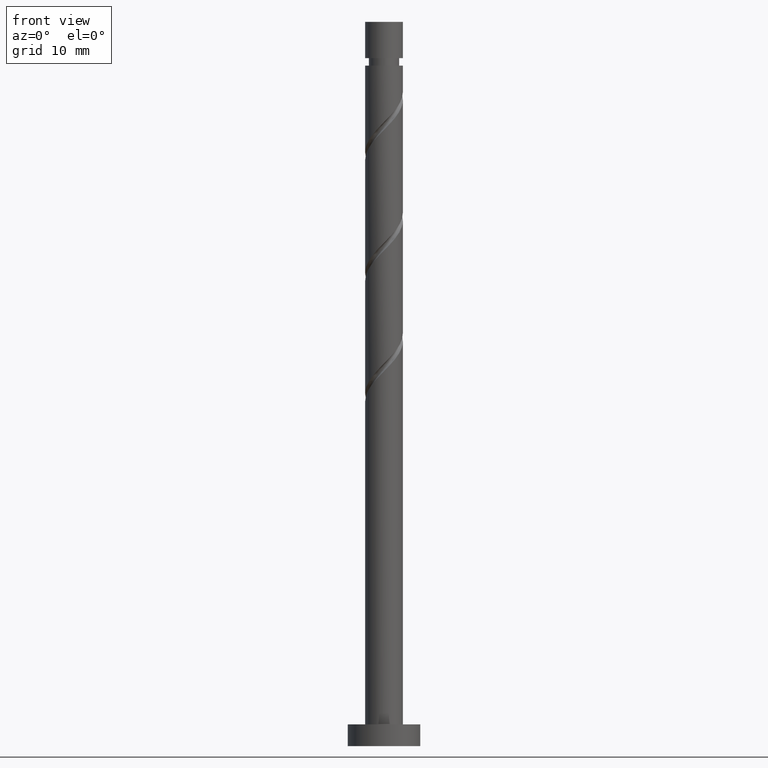
[diagram: clean part render]
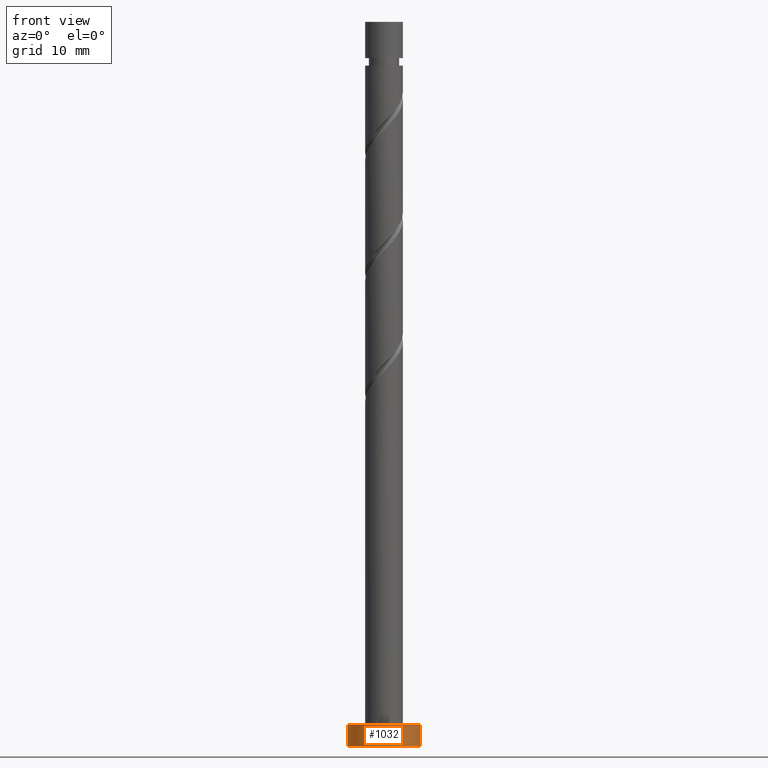
[diagram: same view with one face highlighted and labeled with its STEP entity id]
A machine part, front view. The second image highlights one B-rep face of the part: STEP entity #1032.
In plain terms, the highlighted cylindrical surface (edge-blend (fillet) strip) has radius 5 mm, axis along (-0, -0, -1).
Its self-contained STEP definition (entity closure, byte-faithful):
#8 = EDGE_CURVE ( 'NONE', #994, #1067, #13, .T. ) ;
#13 = LINE ( 'NONE', #481, #936 ) ;
#110 = AXIS2_PLACEMENT_3D ( 'NONE', #1447, #428, #880 ) ;
#136 = CARTESIAN_POINT ( 'NONE',  ( -5.000000000000000000, 0.000000000000000000, 0.000000000000000000 ) ) ;
#172 = DIRECTION ( 'NONE',  ( 1.000000000000000000, 0.000000000000000000, 0.000000000000000000 ) ) ;
#229 = CIRCLE ( 'NONE', #110, 5.000000000000000000 ) ;
#280 = DIRECTION ( 'NONE',  ( -0.000000000000000000, -0.000000000000000000, -1.000000000000000000 ) ) ;
#284 = VECTOR ( 'NONE', #280, 1000.000000000000000 ) ;
#311 = CARTESIAN_POINT ( 'NONE',  ( 0.000000000000000000, 0.000000000000000000, 3.000000000000000000 ) ) ;
#362 = CARTESIAN_POINT ( 'NONE',  ( 5.000000000000000000, 6.123233995736766282E-16, 0.000000000000000000 ) ) ;
#378 = LINE ( 'NONE', #713, #284 ) ;
#428 = DIRECTION ( 'NONE',  ( 0.000000000000000000, 0.000000000000000000, 1.000000000000000000 ) ) ;
#449 = VERTEX_POINT ( 'NONE', #136 ) ;
#457 = EDGE_LOOP ( 'NONE', ( #1470, #814, #1199, #1240 ) ) ;
#481 = CARTESIAN_POINT ( 'NONE',  ( 5.000000000000000000, 6.123233995736766282E-16, 3.000000000000000000 ) ) ;
#515 = DIRECTION ( 'NONE',  ( 0.000000000000000000, 0.000000000000000000, 1.000000000000000000 ) ) ;
#534 = CARTESIAN_POINT ( 'NONE',  ( 5.000000000000000000, 6.123233995736766282E-16, 3.000000000000000000 ) ) ;
#563 = AXIS2_PLACEMENT_3D ( 'NONE', #311, #1110, #1119 ) ;
#685 = AXIS2_PLACEMENT_3D ( 'NONE', #866, #515, #172 ) ;
#710 = CIRCLE ( 'NONE', #685, 5.000000000000000000 ) ;
#713 = CARTESIAN_POINT ( 'NONE',  ( -5.000000000000000000, 0.000000000000000000, 3.000000000000000000 ) ) ;
#814 = ORIENTED_EDGE ( 'NONE', *, *, #1009, .F. ) ;
#851 = EDGE_CURVE ( 'NONE', #449, #1067, #710, .T. ) ;
#866 = CARTESIAN_POINT ( 'NONE',  ( 0.000000000000000000, 0.000000000000000000, 0.000000000000000000 ) ) ;
#880 = DIRECTION ( 'NONE',  ( 1.000000000000000000, 0.000000000000000000, 0.000000000000000000 ) ) ;
#888 = FACE_OUTER_BOUND ( 'NONE', #457, .T. ) ;
#913 = CARTESIAN_POINT ( 'NONE',  ( -5.000000000000000000, 0.000000000000000000, 3.000000000000000000 ) ) ;
#936 = VECTOR ( 'NONE', #938, 1000.000000000000000 ) ;
#938 = DIRECTION ( 'NONE',  ( -0.000000000000000000, -0.000000000000000000, -1.000000000000000000 ) ) ;
#994 = VERTEX_POINT ( 'NONE', #534 ) ;
#1009 = EDGE_CURVE ( 'NONE', #1208, #994, #229, .T. ) ;
#1032 = ADVANCED_FACE ( 'NONE', ( #888 ), #1324, .T. ) ;
#1067 = VERTEX_POINT ( 'NONE', #362 ) ;
#1110 = DIRECTION ( 'NONE',  ( -0.000000000000000000, -0.000000000000000000, -1.000000000000000000 ) ) ;
#1119 = DIRECTION ( 'NONE',  ( -1.000000000000000000, 0.000000000000000000, 0.000000000000000000 ) ) ;
#1199 = ORIENTED_EDGE ( 'NONE', *, *, #1308, .T. ) ;
#1208 = VERTEX_POINT ( 'NONE', #913 ) ;
#1240 = ORIENTED_EDGE ( 'NONE', *, *, #851, .T. ) ;
#1308 = EDGE_CURVE ( 'NONE', #1208, #449, #378, .T. ) ;
#1324 = CYLINDRICAL_SURFACE ( 'NONE', #563, 5.000000000000000000 ) ;
#1447 = CARTESIAN_POINT ( 'NONE',  ( 0.000000000000000000, 0.000000000000000000, 3.000000000000000000 ) ) ;
#1470 = ORIENTED_EDGE ( 'NONE', *, *, #8, .F. ) ;